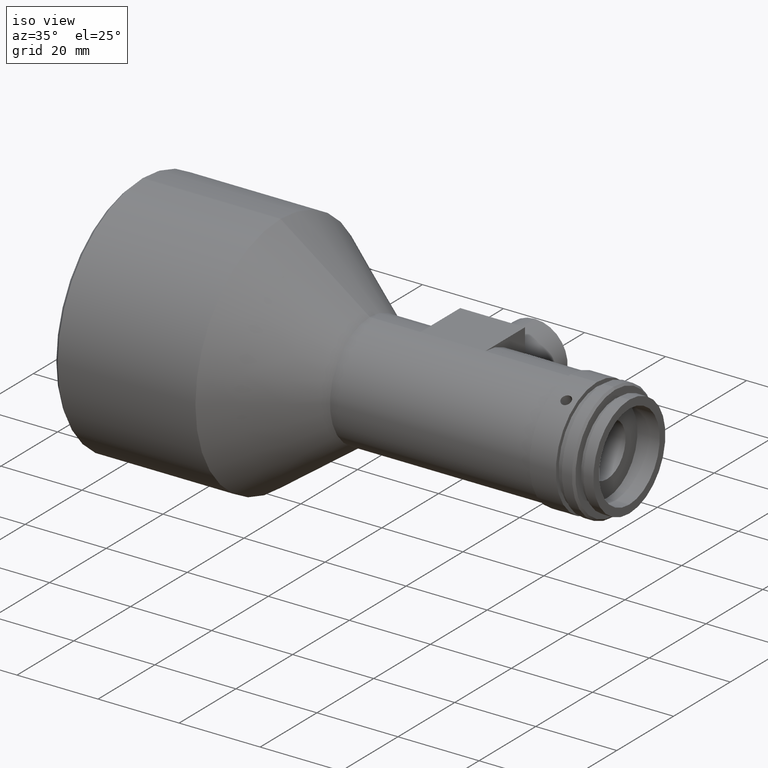
[diagram: clean part render]
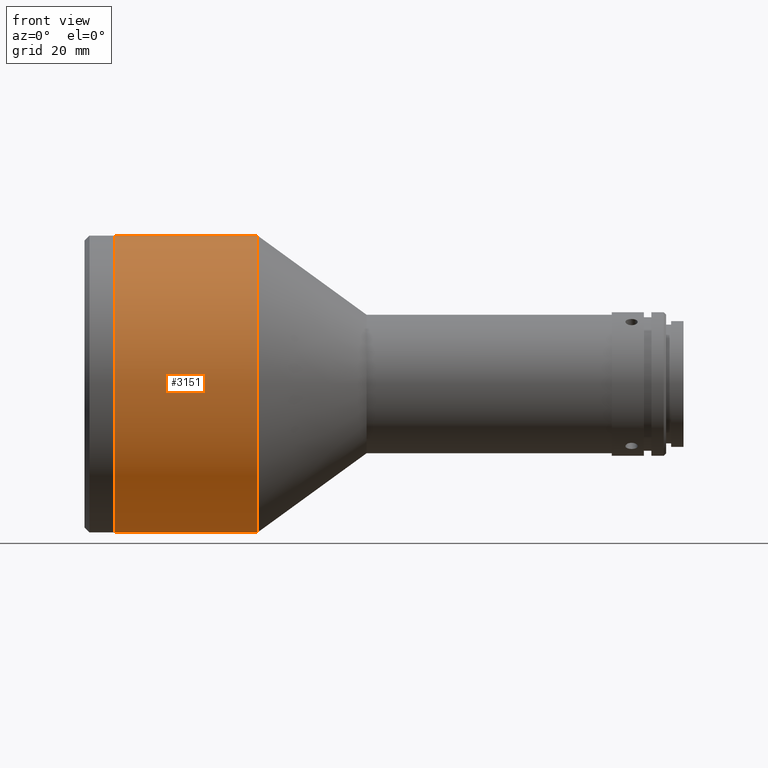
[diagram: tour spotlight — one face highlighted and labeled with its STEP entity id]
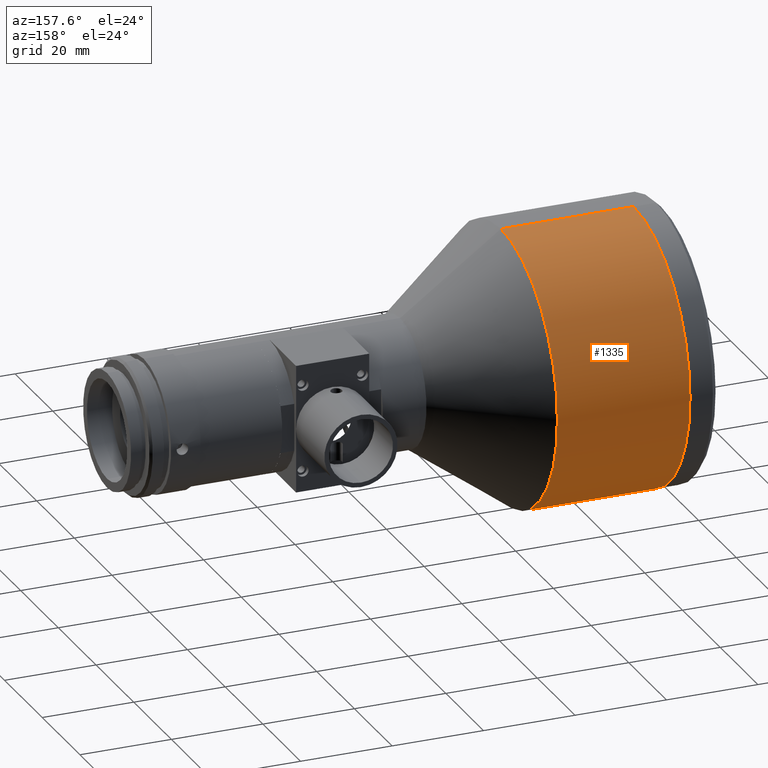
[diagram: tour spotlight — one face highlighted and labeled with its STEP entity id]
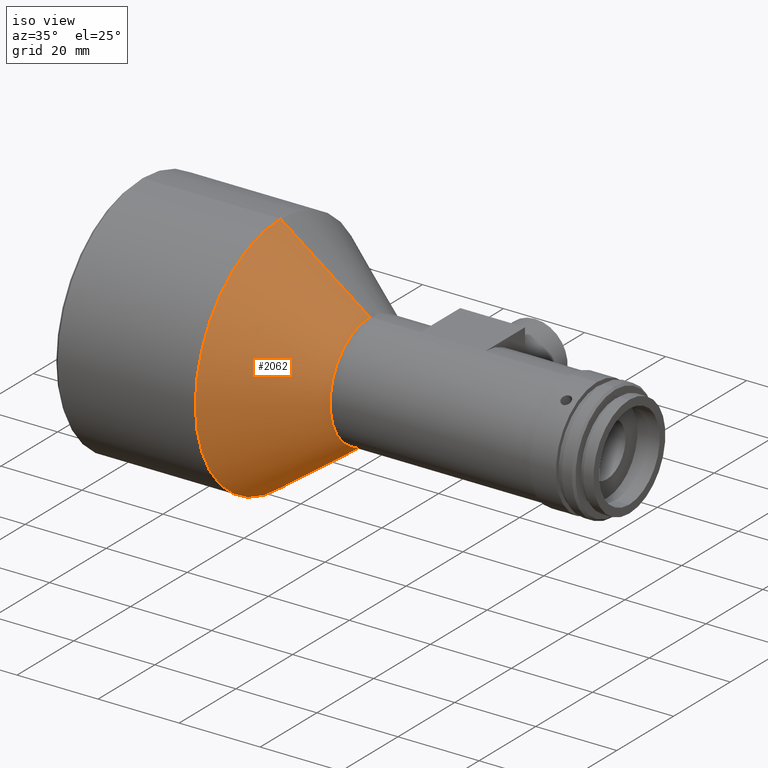
[diagram: tour spotlight — one face highlighted and labeled with its STEP entity id]
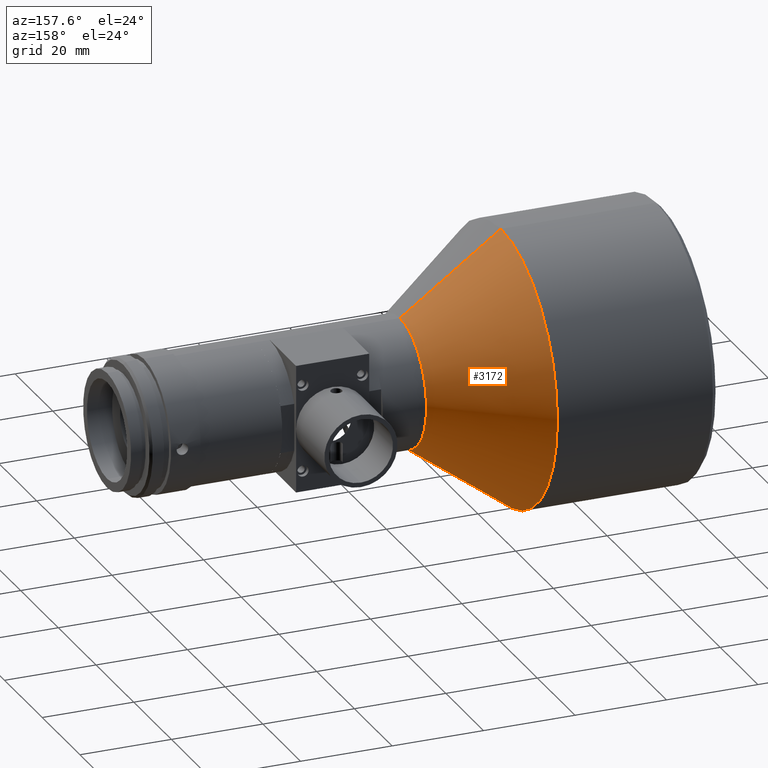
[diagram: tour spotlight — one face highlighted and labeled with its STEP entity id]
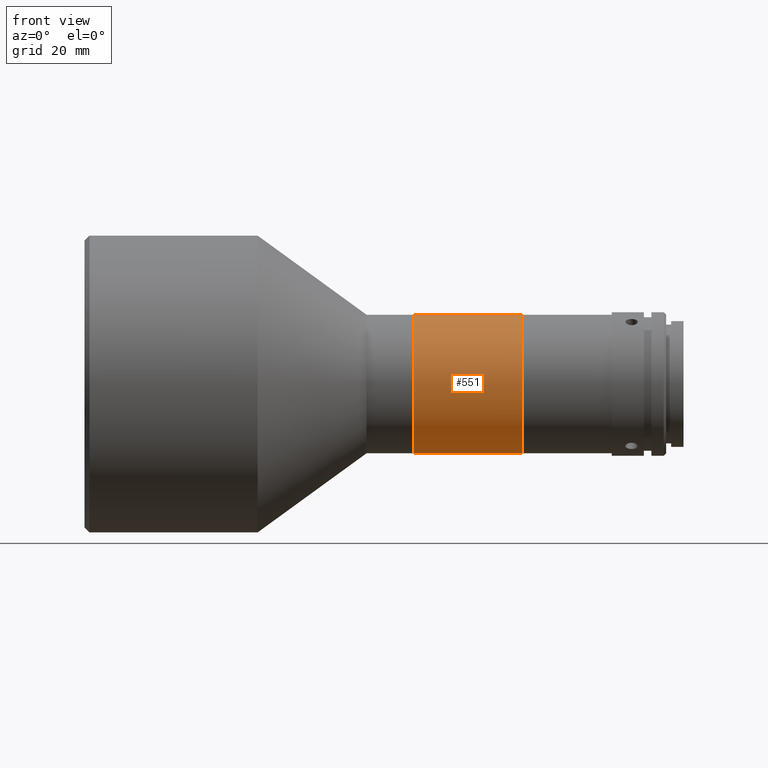
[diagram: tour spotlight — one face highlighted and labeled with its STEP entity id]
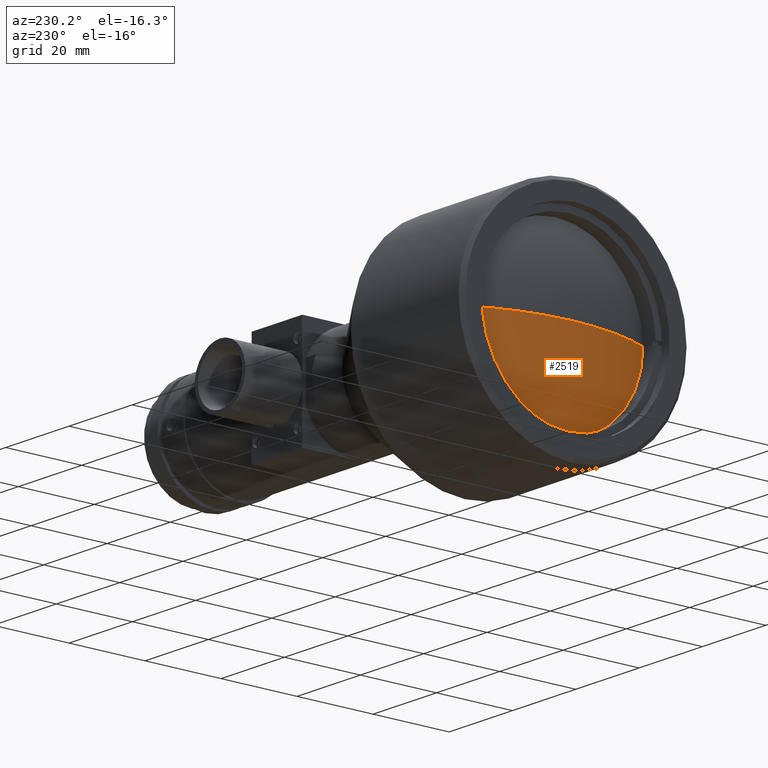
[diagram: tour spotlight — one face highlighted and labeled with its STEP entity id]
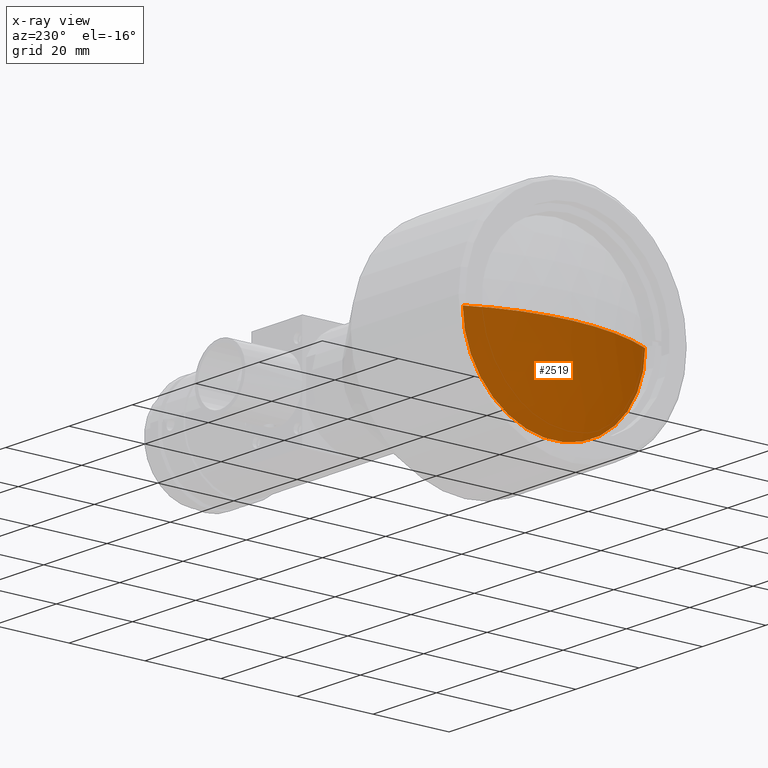
[diagram: x-ray of the same camera — body ghosted, this tour face saturated]
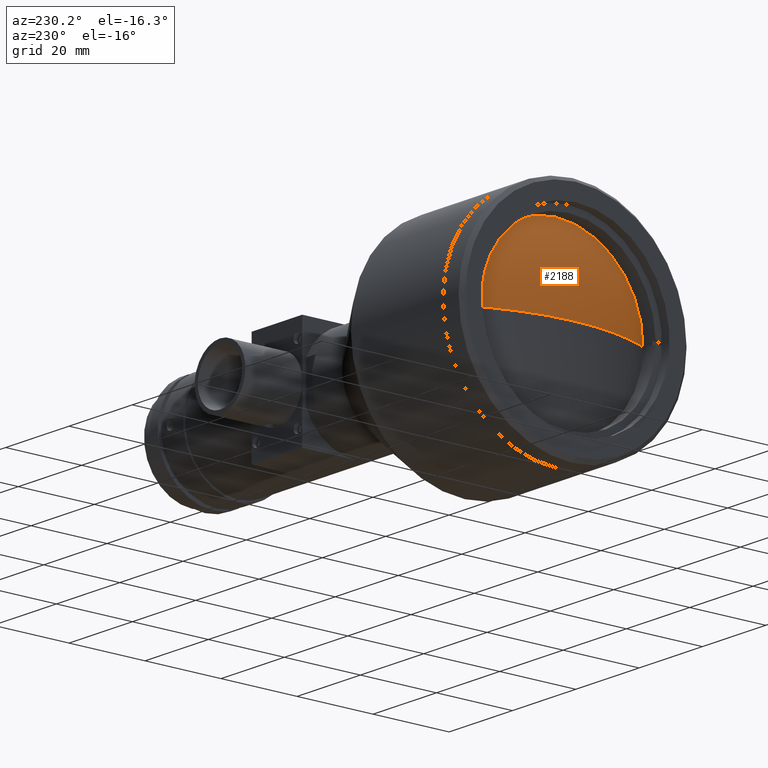
[diagram: tour spotlight — one face highlighted and labeled with its STEP entity id]
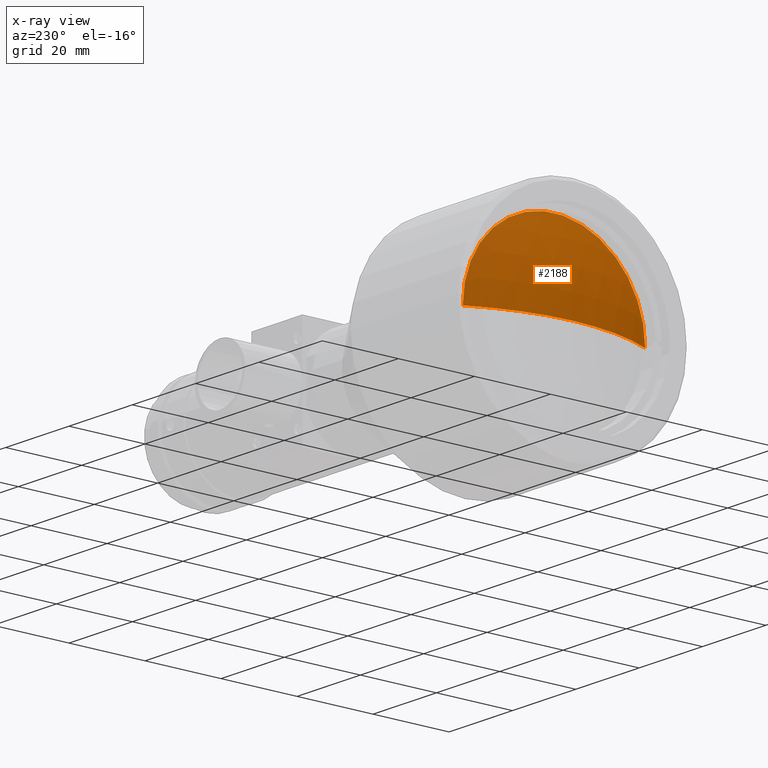
[diagram: x-ray of the same camera — body ghosted, this tour face saturated]
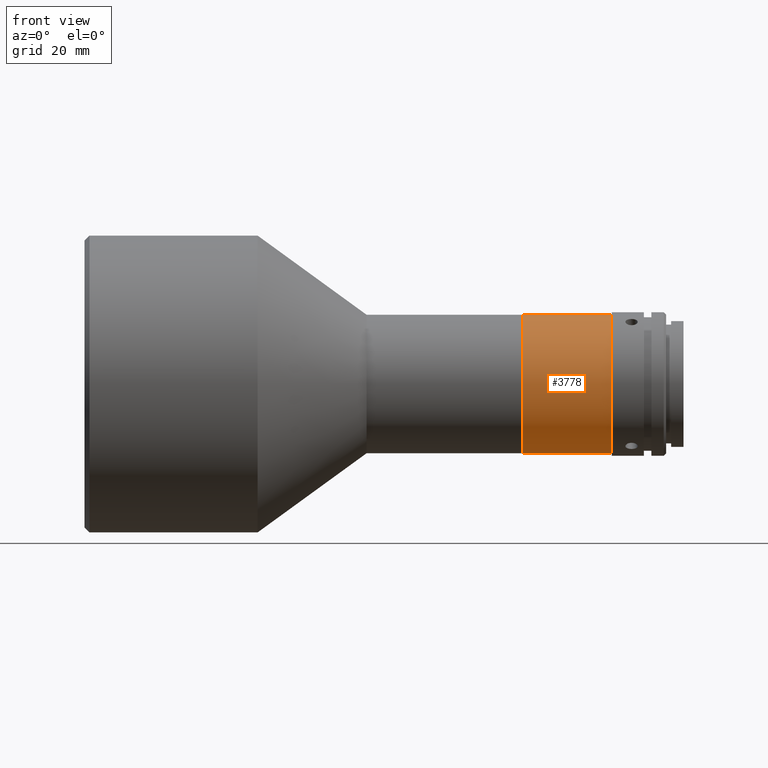
[diagram: tour spotlight — one face highlighted and labeled with its STEP entity id]
A machine part: a face-by-face anatomy tour. The part has 113 B-rep faces; the first image is the clean iso view, then the 8 largest visible faces are spotlighted one at a time (largest first), each with its STEP entity span.

Face 1 — front view, entity #3151. In plain terms, the highlighted cylindrical surface (partial cylindrical patch) has radius 30 mm, axis along (-1, -0, -0).
Definition (entity closure, byte-faithful):
#55 = LINE ( 'NONE', #1238, #846 ) ;
#68 = DIRECTION ( 'NONE',  ( -1.000000000000000000, -0.0000000000000000000, -0.0000000000000000000 ) ) ;
#344 = ORIENTED_EDGE ( 'NONE', *, *, #3383, .F. ) ;
#457 = VERTEX_POINT ( 'NONE', #1745 ) ;
#660 = CYLINDRICAL_SURFACE ( 'NONE', #906, 30.00000000000000000 ) ;
#837 = DIRECTION ( 'NONE',  ( 0.0000000000000000000, 0.0000000000000000000, 1.000000000000000000 ) ) ;
#846 = VECTOR ( 'NONE', #3369, 1000.000000000000000 ) ;
#906 = AXIS2_PLACEMENT_3D ( 'NONE', #3610, #3301, #837 ) ;
#933 = AXIS2_PLACEMENT_3D ( 'NONE', #1922, #68, #3124 ) ;
#944 = LINE ( 'NONE', #1747, #2588 ) ;
#960 = EDGE_CURVE ( 'NONE', #457, #2265, #944, .T. ) ;
#996 = CARTESIAN_POINT ( 'NONE',  ( 5.999999999999998200, 0.0000000000000000000, 0.0000000000000000000 ) ) ;
#1238 = CARTESIAN_POINT ( 'NONE',  ( -32.77816834106168600, 3.673940397442059200E-015, -30.00000000000000000 ) ) ;
#1296 = DIRECTION ( 'NONE',  ( 0.0000000000000000000, 0.0000000000000000000, 1.000000000000000000 ) ) ;
#1340 = VERTEX_POINT ( 'NONE', #3564 ) ;
#1496 = DIRECTION ( 'NONE',  ( -1.000000000000000000, -0.0000000000000000000, -0.0000000000000000000 ) ) ;
#1701 = CIRCLE ( 'NONE', #3168, 30.00000000000000000 ) ;
#1745 = CARTESIAN_POINT ( 'NONE',  ( 35.00000000000000000, 0.0000000000000000000, 29.99999999999999600 ) ) ;
#1747 = CARTESIAN_POINT ( 'NONE',  ( -32.77816834106168600, 0.0000000000000000000, 30.00000000000000000 ) ) ;
#1911 = CARTESIAN_POINT ( 'NONE',  ( 35.00000000000000000, 3.673940397442059200E-015, -29.99999999999999600 ) ) ;
#1922 = CARTESIAN_POINT ( 'NONE',  ( 35.00000000000000000, 0.0000000000000000000, 0.0000000000000000000 ) ) ;
#2265 = VERTEX_POINT ( 'NONE', #3732 ) ;
#2397 = EDGE_CURVE ( 'NONE', #3400, #457, #2406, .T. ) ;
#2406 = CIRCLE ( 'NONE', #933, 30.00000000000000000 ) ;
#2581 = ORIENTED_EDGE ( 'NONE', *, *, #2397, .T. ) ;
#2588 = VECTOR ( 'NONE', #1496, 1000.000000000000000 ) ;
#2738 = ORIENTED_EDGE ( 'NONE', *, *, #960, .T. ) ;
#3119 = ORIENTED_EDGE ( 'NONE', *, *, #3667, .F. ) ;
#3124 = DIRECTION ( 'NONE',  ( 0.0000000000000000000, 0.0000000000000000000, 1.000000000000000000 ) ) ;
#3134 = DIRECTION ( 'NONE',  ( -1.000000000000000000, -0.0000000000000000000, -0.0000000000000000000 ) ) ;
#3151 = ADVANCED_FACE ( 'NONE', ( #3194 ), #660, .T. ) ;
#3168 = AXIS2_PLACEMENT_3D ( 'NONE', #996, #3134, #1296 ) ;
#3194 = FACE_OUTER_BOUND ( 'NONE', #3448, .T. ) ;
#3301 = DIRECTION ( 'NONE',  ( -1.000000000000000000, -0.0000000000000000000, -0.0000000000000000000 ) ) ;
#3369 = DIRECTION ( 'NONE',  ( -1.000000000000000000, -0.0000000000000000000, -0.0000000000000000000 ) ) ;
#3383 = EDGE_CURVE ( 'NONE', #1340, #2265, #1701, .T. ) ;
#3400 = VERTEX_POINT ( 'NONE', #1911 ) ;
#3448 = EDGE_LOOP ( 'NONE', ( #3119, #2581, #2738, #344 ) ) ;
#3564 = CARTESIAN_POINT ( 'NONE',  ( 5.999999999999998200, 3.673940397442059200E-015, -30.00000000000000000 ) ) ;
#3610 = CARTESIAN_POINT ( 'NONE',  ( -32.77816834106168600, 0.0000000000000000000, 0.0000000000000000000 ) ) ;
#3667 = EDGE_CURVE ( 'NONE', #3400, #1340, #55, .T. ) ;
#3732 = CARTESIAN_POINT ( 'NONE',  ( 5.999999999999998200, 0.0000000000000000000, 30.00000000000000000 ) ) ;

Face 2 — auxiliary view, entity #1335. In plain terms, the highlighted cylindrical surface (partial cylindrical patch) has radius 30 mm, axis along (-1, -0, -0).
Definition (entity closure, byte-faithful):
#55 = LINE ( 'NONE', #1238, #846 ) ;
#427 = AXIS2_PLACEMENT_3D ( 'NONE', #3228, #1089, #1414 ) ;
#457 = VERTEX_POINT ( 'NONE', #1745 ) ;
#484 = DIRECTION ( 'NONE',  ( -1.000000000000000000, -0.0000000000000000000, -0.0000000000000000000 ) ) ;
#729 = EDGE_CURVE ( 'NONE', #457, #3400, #802, .T. ) ;
#802 = CIRCLE ( 'NONE', #3310, 30.00000000000000000 ) ;
#846 = VECTOR ( 'NONE', #3369, 1000.000000000000000 ) ;
#944 = LINE ( 'NONE', #1747, #2588 ) ;
#960 = EDGE_CURVE ( 'NONE', #457, #2265, #944, .T. ) ;
#1089 = DIRECTION ( 'NONE',  ( -1.000000000000000000, -0.0000000000000000000, -0.0000000000000000000 ) ) ;
#1238 = CARTESIAN_POINT ( 'NONE',  ( -32.77816834106168600, 3.673940397442059200E-015, -30.00000000000000000 ) ) ;
#1335 = ADVANCED_FACE ( 'NONE', ( #2209 ), #2547, .T. ) ;
#1340 = VERTEX_POINT ( 'NONE', #3564 ) ;
#1414 = DIRECTION ( 'NONE',  ( 0.0000000000000000000, 0.0000000000000000000, 1.000000000000000000 ) ) ;
#1447 = ORIENTED_EDGE ( 'NONE', *, *, #2470, .F. ) ;
#1496 = DIRECTION ( 'NONE',  ( -1.000000000000000000, -0.0000000000000000000, -0.0000000000000000000 ) ) ;
#1745 = CARTESIAN_POINT ( 'NONE',  ( 35.00000000000000000, 0.0000000000000000000, 29.99999999999999600 ) ) ;
#1747 = CARTESIAN_POINT ( 'NONE',  ( -32.77816834106168600, 0.0000000000000000000, 30.00000000000000000 ) ) ;
#1826 = DIRECTION ( 'NONE',  ( -1.000000000000000000, -0.0000000000000000000, -0.0000000000000000000 ) ) ;
#1911 = CARTESIAN_POINT ( 'NONE',  ( 35.00000000000000000, 3.673940397442059200E-015, -29.99999999999999600 ) ) ;
#1956 = AXIS2_PLACEMENT_3D ( 'NONE', #2319, #484, #2636 ) ;
#2019 = ORIENTED_EDGE ( 'NONE', *, *, #960, .F. ) ;
#2209 = FACE_OUTER_BOUND ( 'NONE', #3830, .T. ) ;
#2265 = VERTEX_POINT ( 'NONE', #3732 ) ;
#2319 = CARTESIAN_POINT ( 'NONE',  ( 5.999999999999998200, 0.0000000000000000000, 0.0000000000000000000 ) ) ;
#2470 = EDGE_CURVE ( 'NONE', #2265, #1340, #3820, .T. ) ;
#2547 = CYLINDRICAL_SURFACE ( 'NONE', #427, 30.00000000000000000 ) ;
#2588 = VECTOR ( 'NONE', #1496, 1000.000000000000000 ) ;
#2636 = DIRECTION ( 'NONE',  ( 0.0000000000000000000, 0.0000000000000000000, 1.000000000000000000 ) ) ;
#2897 = ORIENTED_EDGE ( 'NONE', *, *, #729, .T. ) ;
#3049 = CARTESIAN_POINT ( 'NONE',  ( 35.00000000000000000, 0.0000000000000000000, 0.0000000000000000000 ) ) ;
#3228 = CARTESIAN_POINT ( 'NONE',  ( -32.77816834106168600, 0.0000000000000000000, 0.0000000000000000000 ) ) ;
#3310 = AXIS2_PLACEMENT_3D ( 'NONE', #3049, #1826, #3498 ) ;
#3369 = DIRECTION ( 'NONE',  ( -1.000000000000000000, -0.0000000000000000000, -0.0000000000000000000 ) ) ;
#3400 = VERTEX_POINT ( 'NONE', #1911 ) ;
#3498 = DIRECTION ( 'NONE',  ( 0.0000000000000000000, 0.0000000000000000000, 1.000000000000000000 ) ) ;
#3564 = CARTESIAN_POINT ( 'NONE',  ( 5.999999999999998200, 3.673940397442059200E-015, -30.00000000000000000 ) ) ;
#3667 = EDGE_CURVE ( 'NONE', #3400, #1340, #55, .T. ) ;
#3732 = CARTESIAN_POINT ( 'NONE',  ( 5.999999999999998200, 0.0000000000000000000, 30.00000000000000000 ) ) ;
#3820 = CIRCLE ( 'NONE', #1956, 30.00000000000000000 ) ;
#3830 = EDGE_LOOP ( 'NONE', ( #2897, #3869, #1447, #2019 ) ) ;
#3869 = ORIENTED_EDGE ( 'NONE', *, *, #3667, .T. ) ;

Face 3 — iso view, entity #2062. In plain terms, the highlighted conical surface has half-angle 36 deg.
Definition (entity closure, byte-faithful):
#68 = DIRECTION ( 'NONE',  ( -1.000000000000000000, -0.0000000000000000000, -0.0000000000000000000 ) ) ;
#150 = CARTESIAN_POINT ( 'NONE',  ( 57.02211072753905800, 0.0000000000000000000, 0.0000000000000000000 ) ) ;
#186 = DIRECTION ( 'NONE',  ( 0.0000000000000000000, 0.0000000000000000000, 1.000000000000000000 ) ) ;
#279 = DIRECTION ( 'NONE',  ( 0.0000000000000000000, 0.0000000000000000000, 1.000000000000000000 ) ) ;
#457 = VERTEX_POINT ( 'NONE', #1745 ) ;
#656 = EDGE_CURVE ( 'NONE', #1263, #457, #1900, .T. ) ;
#779 = ORIENTED_EDGE ( 'NONE', *, *, #2397, .F. ) ;
#788 = CARTESIAN_POINT ( 'NONE',  ( 57.02211072753905800, 1.714505518806294400E-015, -13.99999999999999800 ) ) ;
#899 = EDGE_CURVE ( 'NONE', #2509, #1263, #2782, .T. ) ;
#933 = AXIS2_PLACEMENT_3D ( 'NONE', #1922, #68, #3124 ) ;
#977 = ORIENTED_EDGE ( 'NONE', *, *, #656, .T. ) ;
#1237 = DIRECTION ( 'NONE',  ( -1.000000000000000000, -0.0000000000000000000, -0.0000000000000000000 ) ) ;
#1263 = VERTEX_POINT ( 'NONE', #3612 ) ;
#1624 = EDGE_LOOP ( 'NONE', ( #3373, #1967, #977, #779 ) ) ;
#1723 = LINE ( 'NONE', #3018, #3251 ) ;
#1745 = CARTESIAN_POINT ( 'NONE',  ( 35.00000000000000000, 0.0000000000000000000, 29.99999999999999600 ) ) ;
#1900 = LINE ( 'NONE', #2431, #2729 ) ;
#1911 = CARTESIAN_POINT ( 'NONE',  ( 35.00000000000000000, 3.673940397442059200E-015, -29.99999999999999600 ) ) ;
#1922 = CARTESIAN_POINT ( 'NONE',  ( 35.00000000000000000, 0.0000000000000000000, 0.0000000000000000000 ) ) ;
#1967 = ORIENTED_EDGE ( 'NONE', *, *, #899, .T. ) ;
#2062 = ADVANCED_FACE ( 'NONE', ( #3441 ), #2457, .T. ) ;
#2397 = EDGE_CURVE ( 'NONE', #3400, #457, #2406, .T. ) ;
#2406 = CIRCLE ( 'NONE', #933, 30.00000000000000000 ) ;
#2430 = AXIS2_PLACEMENT_3D ( 'NONE', #3058, #1237, #186 ) ;
#2431 = CARTESIAN_POINT ( 'NONE',  ( 57.02211072753905800, 0.0000000000000000000, 13.99999999999999800 ) ) ;
#2457 = CONICAL_SURFACE ( 'NONE', #2744, 13.99999999999999800, 0.6283185307179526300 ) ;
#2509 = VERTEX_POINT ( 'NONE', #788 ) ;
#2647 = EDGE_CURVE ( 'NONE', #2509, #3400, #1723, .T. ) ;
#2729 = VECTOR ( 'NONE', #3468, 1000.000000000000000 ) ;
#2744 = AXIS2_PLACEMENT_3D ( 'NONE', #150, #3006, #279 ) ;
#2782 = CIRCLE ( 'NONE', #2430, 13.99999999999999800 ) ;
#3006 = DIRECTION ( 'NONE',  ( -1.000000000000000000, -0.0000000000000000000, -0.0000000000000000000 ) ) ;
#3018 = CARTESIAN_POINT ( 'NONE',  ( 57.02211072753905800, 1.714505518806294400E-015, -13.99999999999999800 ) ) ;
#3058 = CARTESIAN_POINT ( 'NONE',  ( 57.02211072753905800, 0.0000000000000000000, 0.0000000000000000000 ) ) ;
#3124 = DIRECTION ( 'NONE',  ( 0.0000000000000000000, 0.0000000000000000000, 1.000000000000000000 ) ) ;
#3251 = VECTOR ( 'NONE', #3907, 1000.000000000000000 ) ;
#3373 = ORIENTED_EDGE ( 'NONE', *, *, #2647, .F. ) ;
#3400 = VERTEX_POINT ( 'NONE', #1911 ) ;
#3441 = FACE_OUTER_BOUND ( 'NONE', #1624, .T. ) ;
#3468 = DIRECTION ( 'NONE',  ( -0.8090169943749510000, 0.0000000000000000000, 0.5877852522924682500 ) ) ;
#3612 = CARTESIAN_POINT ( 'NONE',  ( 57.02211072753905800, 0.0000000000000000000, 13.99999999999999800 ) ) ;
#3907 = DIRECTION ( 'NONE',  ( -0.8090169943749510000, 7.198293278059907200E-017, -0.5877852522924682500 ) ) ;

Face 4 — auxiliary view, entity #3172. In plain terms, the highlighted conical surface has half-angle 36 deg.
Definition (entity closure, byte-faithful):
#303 = AXIS2_PLACEMENT_3D ( 'NONE', #3023, #1178, #3317 ) ;
#383 = CIRCLE ( 'NONE', #1563, 13.99999999999999800 ) ;
#457 = VERTEX_POINT ( 'NONE', #1745 ) ;
#656 = EDGE_CURVE ( 'NONE', #1263, #457, #1900, .T. ) ;
#729 = EDGE_CURVE ( 'NONE', #457, #3400, #802, .T. ) ;
#788 = CARTESIAN_POINT ( 'NONE',  ( 57.02211072753905800, 1.714505518806294400E-015, -13.99999999999999800 ) ) ;
#802 = CIRCLE ( 'NONE', #3310, 30.00000000000000000 ) ;
#1178 = DIRECTION ( 'NONE',  ( -1.000000000000000000, -0.0000000000000000000, -0.0000000000000000000 ) ) ;
#1208 = DIRECTION ( 'NONE',  ( 0.0000000000000000000, 0.0000000000000000000, 1.000000000000000000 ) ) ;
#1218 = DIRECTION ( 'NONE',  ( -1.000000000000000000, -0.0000000000000000000, -0.0000000000000000000 ) ) ;
#1263 = VERTEX_POINT ( 'NONE', #3612 ) ;
#1458 = FACE_OUTER_BOUND ( 'NONE', #3533, .T. ) ;
#1563 = AXIS2_PLACEMENT_3D ( 'NONE', #3109, #1218, #1208 ) ;
#1574 = ORIENTED_EDGE ( 'NONE', *, *, #1779, .T. ) ;
#1723 = LINE ( 'NONE', #3018, #3251 ) ;
#1741 = ORIENTED_EDGE ( 'NONE', *, *, #729, .F. ) ;
#1745 = CARTESIAN_POINT ( 'NONE',  ( 35.00000000000000000, 0.0000000000000000000, 29.99999999999999600 ) ) ;
#1779 = EDGE_CURVE ( 'NONE', #1263, #2509, #383, .T. ) ;
#1826 = DIRECTION ( 'NONE',  ( -1.000000000000000000, -0.0000000000000000000, -0.0000000000000000000 ) ) ;
#1900 = LINE ( 'NONE', #2431, #2729 ) ;
#1911 = CARTESIAN_POINT ( 'NONE',  ( 35.00000000000000000, 3.673940397442059200E-015, -29.99999999999999600 ) ) ;
#2102 = CONICAL_SURFACE ( 'NONE', #303, 13.99999999999999800, 0.6283185307179526300 ) ;
#2431 = CARTESIAN_POINT ( 'NONE',  ( 57.02211072753905800, 0.0000000000000000000, 13.99999999999999800 ) ) ;
#2509 = VERTEX_POINT ( 'NONE', #788 ) ;
#2647 = EDGE_CURVE ( 'NONE', #2509, #3400, #1723, .T. ) ;
#2729 = VECTOR ( 'NONE', #3468, 1000.000000000000000 ) ;
#3018 = CARTESIAN_POINT ( 'NONE',  ( 57.02211072753905800, 1.714505518806294400E-015, -13.99999999999999800 ) ) ;
#3023 = CARTESIAN_POINT ( 'NONE',  ( 57.02211072753905800, 0.0000000000000000000, 0.0000000000000000000 ) ) ;
#3049 = CARTESIAN_POINT ( 'NONE',  ( 35.00000000000000000, 0.0000000000000000000, 0.0000000000000000000 ) ) ;
#3109 = CARTESIAN_POINT ( 'NONE',  ( 57.02211072753905800, 0.0000000000000000000, 0.0000000000000000000 ) ) ;
#3172 = ADVANCED_FACE ( 'NONE', ( #1458 ), #2102, .T. ) ;
#3251 = VECTOR ( 'NONE', #3907, 1000.000000000000000 ) ;
#3310 = AXIS2_PLACEMENT_3D ( 'NONE', #3049, #1826, #3498 ) ;
#3317 = DIRECTION ( 'NONE',  ( 0.0000000000000000000, 0.0000000000000000000, 1.000000000000000000 ) ) ;
#3400 = VERTEX_POINT ( 'NONE', #1911 ) ;
#3468 = DIRECTION ( 'NONE',  ( -0.8090169943749510000, 0.0000000000000000000, 0.5877852522924682500 ) ) ;
#3498 = DIRECTION ( 'NONE',  ( 0.0000000000000000000, 0.0000000000000000000, 1.000000000000000000 ) ) ;
#3533 = EDGE_LOOP ( 'NONE', ( #1574, #3735, #1741, #3733 ) ) ;
#3612 = CARTESIAN_POINT ( 'NONE',  ( 57.02211072753905800, 0.0000000000000000000, 13.99999999999999800 ) ) ;
#3733 = ORIENTED_EDGE ( 'NONE', *, *, #656, .F. ) ;
#3735 = ORIENTED_EDGE ( 'NONE', *, *, #2647, .T. ) ;
#3907 = DIRECTION ( 'NONE',  ( -0.8090169943749510000, 7.198293278059907200E-017, -0.5877852522924682500 ) ) ;

Face 5 — front view, entity #551. In plain terms, the highlighted cylindrical surface (partial cylindrical patch) has radius 14 mm, axis along (-1, -0, -0).
Definition (entity closure, byte-faithful):
#5 = DIRECTION ( 'NONE',  ( 0.0000000000000000000, 0.0000000000000000000, 1.000000000000000000 ) ) ;
#57 = ORIENTED_EDGE ( 'NONE', *, *, #691, .T. ) ;
#168 = CARTESIAN_POINT ( 'NONE',  ( 88.54000000000000600, 0.0000000000000000000, 0.0000000000000000000 ) ) ;
#203 = EDGE_CURVE ( 'NONE', #2184, #657, #3425, .T. ) ;
#211 = CARTESIAN_POINT ( 'NONE',  ( 69.54000000000000600, 0.0000000000000000000, -14.00000000000000000 ) ) ;
#286 = CARTESIAN_POINT ( 'NONE',  ( 88.54000000000000600, 0.0000000000000000000, 14.00000000000000000 ) ) ;
#302 = EDGE_CURVE ( 'NONE', #3919, #3101, #3856, .T. ) ;
#308 = CARTESIAN_POINT ( 'NONE',  ( 66.54000000000000600, 0.0000000000000000000, 14.00000000000000000 ) ) ;
#353 = AXIS2_PLACEMENT_3D ( 'NONE', #168, #522, #3565 ) ;
#377 = CIRCLE ( 'NONE', #2096, 14.00000000000000000 ) ;
#483 = AXIS2_PLACEMENT_3D ( 'NONE', #605, #584, #5 ) ;
#492 = DIRECTION ( 'NONE',  ( -1.000000000000000000, -0.0000000000000000000, -0.0000000000000000000 ) ) ;
#500 = VERTEX_POINT ( 'NONE', #2238 ) ;
#522 = DIRECTION ( 'NONE',  ( 1.000000000000000000, 0.0000000000000000000, 0.0000000000000000000 ) ) ;
#551 = ADVANCED_FACE ( 'NONE', ( #3196 ), #3713, .T. ) ;
#578 = LINE ( 'NONE', #1104, #3030 ) ;
#584 = DIRECTION ( 'NONE',  ( -1.000000000000000000, -0.0000000000000000000, -0.0000000000000000000 ) ) ;
#594 = CARTESIAN_POINT ( 'NONE',  ( 85.54000000000000600, 0.0000000000000000000, -14.00000000000000000 ) ) ;
#605 = CARTESIAN_POINT ( 'NONE',  ( 88.54000000000000600, 0.0000000000000000000, 0.0000000000000000000 ) ) ;
#657 = VERTEX_POINT ( 'NONE', #211 ) ;
#691 = EDGE_CURVE ( 'NONE', #2727, #1787, #377, .T. ) ;
#830 = ORIENTED_EDGE ( 'NONE', *, *, #203, .F. ) ;
#840 = DIRECTION ( 'NONE',  ( 1.000000000000000000, 0.0000000000000000000, -1.084202172485504400E-016 ) ) ;
#974 = DIRECTION ( 'NONE',  ( -1.000000000000000000, -0.0000000000000000000, -0.0000000000000000000 ) ) ;
#1104 = CARTESIAN_POINT ( 'NONE',  ( 88.54000000000000600, 1.714505518806294600E-015, -14.00000000000000000 ) ) ;
#1158 = ORIENTED_EDGE ( 'NONE', *, *, #1240, .F. ) ;
#1173 = VECTOR ( 'NONE', #974, 1000.000000000000000 ) ;
#1240 = EDGE_CURVE ( 'NONE', #1838, #500, #1374, .T. ) ;
#1256 = DIRECTION ( 'NONE',  ( 0.0000000000000000000, 0.0000000000000000000, -1.000000000000000000 ) ) ;
#1374 = LINE ( 'NONE', #2293, #2931 ) ;
#1693 = ORIENTED_EDGE ( 'NONE', *, *, #2681, .T. ) ;
#1757 = VECTOR ( 'NONE', #3104, 1000.000000000000000 ) ;
#1787 = VERTEX_POINT ( 'NONE', #2433 ) ;
#1838 = VERTEX_POINT ( 'NONE', #1949 ) ;
#1845 = ORIENTED_EDGE ( 'NONE', *, *, #3748, .T. ) ;
#1908 = ORIENTED_EDGE ( 'NONE', *, *, #302, .F. ) ;
#1949 = CARTESIAN_POINT ( 'NONE',  ( 69.54000000000000600, 0.0000000000000000000, 14.00000000000000000 ) ) ;
#1990 = LINE ( 'NONE', #2821, #1173 ) ;
#2028 = CARTESIAN_POINT ( 'NONE',  ( 88.54000000000000600, 1.714505518806294600E-015, -14.00000000000000000 ) ) ;
#2096 = AXIS2_PLACEMENT_3D ( 'NONE', #3254, #3293, #1256 ) ;
#2184 = VERTEX_POINT ( 'NONE', #594 ) ;
#2238 = CARTESIAN_POINT ( 'NONE',  ( 85.54000000000000600, 0.0000000000000000000, 13.99999999999999800 ) ) ;
#2293 = CARTESIAN_POINT ( 'NONE',  ( 69.54000000000000600, 0.0000000000000000000, 14.00000000000000000 ) ) ;
#2428 = DIRECTION ( 'NONE',  ( -1.000000000000000000, -0.0000000000000000000, -0.0000000000000000000 ) ) ;
#2433 = CARTESIAN_POINT ( 'NONE',  ( 66.54000000000000600, 1.714505518806294600E-015, -14.00000000000000000 ) ) ;
#2443 = VECTOR ( 'NONE', #3365, 1000.000000000000000 ) ;
#2453 = VECTOR ( 'NONE', #2428, 1000.000000000000000 ) ;
#2517 = EDGE_CURVE ( 'NONE', #657, #1787, #578, .T. ) ;
#2681 = EDGE_CURVE ( 'NONE', #3919, #500, #3340, .T. ) ;
#2727 = VERTEX_POINT ( 'NONE', #308 ) ;
#2821 = CARTESIAN_POINT ( 'NONE',  ( 88.54000000000000600, 0.0000000000000000000, 14.00000000000000000 ) ) ;
#2931 = VECTOR ( 'NONE', #840, 1000.000000000000000 ) ;
#3030 = VECTOR ( 'NONE', #492, 1000.000000000000000 ) ;
#3101 = VERTEX_POINT ( 'NONE', #2028 ) ;
#3104 = DIRECTION ( 'NONE',  ( -1.000000000000000000, -0.0000000000000000000, -0.0000000000000000000 ) ) ;
#3155 = CARTESIAN_POINT ( 'NONE',  ( 69.54000000000000600, 0.0000000000000000000, -14.00000000000000000 ) ) ;
#3182 = ORIENTED_EDGE ( 'NONE', *, *, #3727, .F. ) ;
#3188 = LINE ( 'NONE', #3704, #1757 ) ;
#3196 = FACE_OUTER_BOUND ( 'NONE', #3334, .T. ) ;
#3222 = ORIENTED_EDGE ( 'NONE', *, *, #2517, .F. ) ;
#3254 = CARTESIAN_POINT ( 'NONE',  ( 66.54000000000000600, 0.0000000000000000000, 0.0000000000000000000 ) ) ;
#3293 = DIRECTION ( 'NONE',  ( 1.000000000000000000, 0.0000000000000000000, 0.0000000000000000000 ) ) ;
#3334 = EDGE_LOOP ( 'NONE', ( #3182, #1908, #1693, #1158, #1845, #57, #3222, #830 ) ) ;
#3340 = LINE ( 'NONE', #286, #2453 ) ;
#3365 = DIRECTION ( 'NONE',  ( -1.000000000000000000, -0.0000000000000000000, -1.084202172485504400E-016 ) ) ;
#3425 = LINE ( 'NONE', #3155, #2443 ) ;
#3532 = CARTESIAN_POINT ( 'NONE',  ( 88.54000000000000600, 0.0000000000000000000, 14.00000000000000000 ) ) ;
#3565 = DIRECTION ( 'NONE',  ( 0.0000000000000000000, 0.0000000000000000000, -1.000000000000000000 ) ) ;
#3704 = CARTESIAN_POINT ( 'NONE',  ( 88.54000000000000600, 1.714505518806294600E-015, -14.00000000000000000 ) ) ;
#3713 = CYLINDRICAL_SURFACE ( 'NONE', #483, 14.00000000000000000 ) ;
#3727 = EDGE_CURVE ( 'NONE', #3101, #2184, #3188, .T. ) ;
#3748 = EDGE_CURVE ( 'NONE', #1838, #2727, #1990, .T. ) ;
#3856 = CIRCLE ( 'NONE', #353, 14.00000000000000000 ) ;
#3919 = VERTEX_POINT ( 'NONE', #3532 ) ;

Face 6 — auxiliary view, entity #2519. An x-ray twin of the same camera follows (body ghosted, this face saturated) — the face is partly hidden behind the body. In plain terms, the highlighted spherical surface has radius 52.8 mm.
Definition (entity closure, byte-faithful):
#170 = ORIENTED_EDGE ( 'NONE', *, *, #3516, .T. ) ;
#172 = DIRECTION ( 'NONE',  ( 0.0000000000000000000, 1.224646799147353200E-016, -1.000000000000000000 ) ) ;
#207 = DIRECTION ( 'NONE',  ( 0.0000000000000000000, 1.000000000000000000, 0.0000000000000000000 ) ) ;
#491 = CARTESIAN_POINT ( 'NONE',  ( 1.108133933174597400, 3.233067549749012400E-015, 0.0000000000000000000 ) ) ;
#698 = EDGE_CURVE ( 'NONE', #2510, #3059, #2539, .T. ) ;
#966 = VERTEX_POINT ( 'NONE', #2598 ) ;
#1091 = CARTESIAN_POINT ( 'NONE',  ( 6.877930871737575600, 0.0000000000000000000, 0.0000000000000000000 ) ) ;
#1378 = CIRCLE ( 'NONE', #2176, 23.99999999999999300 ) ;
#1389 = DIRECTION ( 'NONE',  ( 0.0000000000000000000, 0.0000000000000000000, 1.000000000000000000 ) ) ;
#1443 = AXIS2_PLACEMENT_3D ( 'NONE', #1996, #172, #2312 ) ;
#1996 = CARTESIAN_POINT ( 'NONE',  ( 53.90813393317459700, 0.0000000000000000000, 0.0000000000000000000 ) ) ;
#2007 = CARTESIAN_POINT ( 'NONE',  ( 53.90813393317459700, 0.0000000000000000000, 0.0000000000000000000 ) ) ;
#2036 = DIRECTION ( 'NONE',  ( -0.0000000000000000000, 0.0000000000000000000, -1.000000000000000000 ) ) ;
#2121 = DIRECTION ( 'NONE',  ( -0.0000000000000000000, 0.0000000000000000000, 1.000000000000000000 ) ) ;
#2176 = AXIS2_PLACEMENT_3D ( 'NONE', #1091, #3229, #1389 ) ;
#2177 = CARTESIAN_POINT ( 'NONE',  ( 53.90813393317459700, 0.0000000000000000000, 0.0000000000000000000 ) ) ;
#2301 = AXIS2_PLACEMENT_3D ( 'NONE', #2177, #2121, #2715 ) ;
#2312 = DIRECTION ( 'NONE',  ( 0.0000000000000000000, 1.000000000000000000, 1.224646799147353200E-016 ) ) ;
#2335 = CARTESIAN_POINT ( 'NONE',  ( 6.877930871737575600, 23.99999999999999300, 0.0000000000000000000 ) ) ;
#2340 = CIRCLE ( 'NONE', #1443, 52.79999999999999700 ) ;
#2390 = ORIENTED_EDGE ( 'NONE', *, *, #698, .F. ) ;
#2484 = EDGE_CURVE ( 'NONE', #2510, #966, #1378, .T. ) ;
#2510 = VERTEX_POINT ( 'NONE', #2335 ) ;
#2519 = ADVANCED_FACE ( 'NONE', ( #3629 ), #3725, .T. ) ;
#2539 = CIRCLE ( 'NONE', #2301, 52.80000000000000400 ) ;
#2598 = CARTESIAN_POINT ( 'NONE',  ( 6.877930871737575600, -23.99999999999999300, -2.939152317953647100E-015 ) ) ;
#2704 = ORIENTED_EDGE ( 'NONE', *, *, #2484, .T. ) ;
#2715 = DIRECTION ( 'NONE',  ( 1.000000000000000000, 0.0000000000000000000, 0.0000000000000000000 ) ) ;
#3059 = VERTEX_POINT ( 'NONE', #491 ) ;
#3193 = AXIS2_PLACEMENT_3D ( 'NONE', #2007, #2036, #207 ) ;
#3229 = DIRECTION ( 'NONE',  ( -1.000000000000000000, -0.0000000000000000000, -0.0000000000000000000 ) ) ;
#3260 = EDGE_LOOP ( 'NONE', ( #2704, #170, #2390 ) ) ;
#3516 = EDGE_CURVE ( 'NONE', #966, #3059, #2340, .T. ) ;
#3629 = FACE_OUTER_BOUND ( 'NONE', #3260, .T. ) ;
#3725 = SPHERICAL_SURFACE ( 'NONE', #3193, 52.79999999999999700 ) ;

Face 7 — auxiliary view, entity #2188. An x-ray twin of the same camera follows (body ghosted, this face saturated) — the face is partly hidden behind the body. In plain terms, the highlighted spherical surface has radius 52.8 mm.
Definition (entity closure, byte-faithful):
#172 = DIRECTION ( 'NONE',  ( 0.0000000000000000000, 1.224646799147353200E-016, -1.000000000000000000 ) ) ;
#491 = CARTESIAN_POINT ( 'NONE',  ( 1.108133933174597400, 3.233067549749012400E-015, 0.0000000000000000000 ) ) ;
#501 = ORIENTED_EDGE ( 'NONE', *, *, #3516, .F. ) ;
#698 = EDGE_CURVE ( 'NONE', #2510, #3059, #2539, .T. ) ;
#820 = DIRECTION ( 'NONE',  ( 0.0000000000000000000, 1.000000000000000000, 0.0000000000000000000 ) ) ;
#966 = VERTEX_POINT ( 'NONE', #2598 ) ;
#1339 = SPHERICAL_SURFACE ( 'NONE', #1409, 52.79999999999999700 ) ;
#1409 = AXIS2_PLACEMENT_3D ( 'NONE', #3045, #1517, #820 ) ;
#1429 = FACE_OUTER_BOUND ( 'NONE', #1828, .T. ) ;
#1443 = AXIS2_PLACEMENT_3D ( 'NONE', #1996, #172, #2312 ) ;
#1517 = DIRECTION ( 'NONE',  ( -0.0000000000000000000, 0.0000000000000000000, -1.000000000000000000 ) ) ;
#1799 = EDGE_CURVE ( 'NONE', #966, #2510, #1906, .T. ) ;
#1828 = EDGE_LOOP ( 'NONE', ( #501, #2667, #2422 ) ) ;
#1906 = CIRCLE ( 'NONE', #3022, 23.99999999999999300 ) ;
#1996 = CARTESIAN_POINT ( 'NONE',  ( 53.90813393317459700, 0.0000000000000000000, 0.0000000000000000000 ) ) ;
#2121 = DIRECTION ( 'NONE',  ( -0.0000000000000000000, 0.0000000000000000000, 1.000000000000000000 ) ) ;
#2177 = CARTESIAN_POINT ( 'NONE',  ( 53.90813393317459700, 0.0000000000000000000, 0.0000000000000000000 ) ) ;
#2188 = ADVANCED_FACE ( 'NONE', ( #1429 ), #1339, .T. ) ;
#2301 = AXIS2_PLACEMENT_3D ( 'NONE', #2177, #2121, #2715 ) ;
#2312 = DIRECTION ( 'NONE',  ( 0.0000000000000000000, 1.000000000000000000, 1.224646799147353200E-016 ) ) ;
#2335 = CARTESIAN_POINT ( 'NONE',  ( 6.877930871737575600, 23.99999999999999300, 0.0000000000000000000 ) ) ;
#2340 = CIRCLE ( 'NONE', #1443, 52.79999999999999700 ) ;
#2422 = ORIENTED_EDGE ( 'NONE', *, *, #698, .T. ) ;
#2510 = VERTEX_POINT ( 'NONE', #2335 ) ;
#2539 = CIRCLE ( 'NONE', #2301, 52.80000000000000400 ) ;
#2598 = CARTESIAN_POINT ( 'NONE',  ( 6.877930871737575600, -23.99999999999999300, -2.939152317953647100E-015 ) ) ;
#2601 = DIRECTION ( 'NONE',  ( 0.0000000000000000000, 0.0000000000000000000, 1.000000000000000000 ) ) ;
#2667 = ORIENTED_EDGE ( 'NONE', *, *, #1799, .T. ) ;
#2715 = DIRECTION ( 'NONE',  ( 1.000000000000000000, 0.0000000000000000000, 0.0000000000000000000 ) ) ;
#2717 = DIRECTION ( 'NONE',  ( -1.000000000000000000, -0.0000000000000000000, -0.0000000000000000000 ) ) ;
#3022 = AXIS2_PLACEMENT_3D ( 'NONE', #3141, #2717, #2601 ) ;
#3045 = CARTESIAN_POINT ( 'NONE',  ( 53.90813393317459700, 0.0000000000000000000, 0.0000000000000000000 ) ) ;
#3059 = VERTEX_POINT ( 'NONE', #491 ) ;
#3141 = CARTESIAN_POINT ( 'NONE',  ( 6.877930871737575600, 0.0000000000000000000, 0.0000000000000000000 ) ) ;
#3516 = EDGE_CURVE ( 'NONE', #966, #3059, #2340, .T. ) ;

Face 8 — front view, entity #3778. In plain terms, the highlighted cylindrical surface (partial cylindrical patch) has radius 14 mm, axis along (-1, -0, -0).
Definition (entity closure, byte-faithful):
#265 = EDGE_CURVE ( 'NONE', #2747, #3276, #1510, .T. ) ;
#271 = CYLINDRICAL_SURFACE ( 'NONE', #2413, 14.00000000000000000 ) ;
#300 = CIRCLE ( 'NONE', #2124, 14.00000000000000000 ) ;
#329 = CARTESIAN_POINT ( 'NONE',  ( 88.54000000000000600, 0.0000000000000000000, 14.00000000000000000 ) ) ;
#375 = CARTESIAN_POINT ( 'NONE',  ( 66.73674763457358900, 0.0000000000000000000, 0.0000000000000000000 ) ) ;
#473 = CARTESIAN_POINT ( 'NONE',  ( 66.73674763457358900, 0.0000000000000000000, 14.00000000000000000 ) ) ;
#585 = ORIENTED_EDGE ( 'NONE', *, *, #2013, .T. ) ;
#712 = VECTOR ( 'NONE', #2646, 1000.000000000000000 ) ;
#909 = CARTESIAN_POINT ( 'NONE',  ( 88.54000000000000600, 1.714505518806294600E-015, -14.00000000000000000 ) ) ;
#992 = DIRECTION ( 'NONE',  ( -1.000000000000000000, -0.0000000000000000000, -0.0000000000000000000 ) ) ;
#1025 = VERTEX_POINT ( 'NONE', #3065 ) ;
#1283 = CARTESIAN_POINT ( 'NONE',  ( 66.73674763457358900, 1.714505518806294600E-015, -14.00000000000000000 ) ) ;
#1294 = CIRCLE ( 'NONE', #2596, 14.00000000000000000 ) ;
#1402 = DIRECTION ( 'NONE',  ( -1.000000000000000000, -0.0000000000000000000, -0.0000000000000000000 ) ) ;
#1510 = LINE ( 'NONE', #473, #712 ) ;
#1581 = DIRECTION ( 'NONE',  ( -1.000000000000000000, -0.0000000000000000000, -0.0000000000000000000 ) ) ;
#1600 = VERTEX_POINT ( 'NONE', #909 ) ;
#1669 = DIRECTION ( 'NONE',  ( -1.000000000000000000, -0.0000000000000000000, -0.0000000000000000000 ) ) ;
#2013 = EDGE_CURVE ( 'NONE', #1025, #2747, #300, .T. ) ;
#2124 = AXIS2_PLACEMENT_3D ( 'NONE', #3799, #1669, #3500 ) ;
#2327 = ORIENTED_EDGE ( 'NONE', *, *, #2512, .F. ) ;
#2413 = AXIS2_PLACEMENT_3D ( 'NONE', #375, #992, #2837 ) ;
#2465 = CARTESIAN_POINT ( 'NONE',  ( 106.5899999999999900, 0.0000000000000000000, 14.00000000000000000 ) ) ;
#2512 = EDGE_CURVE ( 'NONE', #1600, #3276, #1294, .T. ) ;
#2534 = VECTOR ( 'NONE', #1581, 1000.000000000000000 ) ;
#2568 = EDGE_LOOP ( 'NONE', ( #2903, #585, #3066, #2327 ) ) ;
#2596 = AXIS2_PLACEMENT_3D ( 'NONE', #3244, #1402, #3546 ) ;
#2635 = LINE ( 'NONE', #1283, #2534 ) ;
#2646 = DIRECTION ( 'NONE',  ( -1.000000000000000000, -0.0000000000000000000, -0.0000000000000000000 ) ) ;
#2747 = VERTEX_POINT ( 'NONE', #2465 ) ;
#2837 = DIRECTION ( 'NONE',  ( 0.0000000000000000000, 0.0000000000000000000, 1.000000000000000000 ) ) ;
#2903 = ORIENTED_EDGE ( 'NONE', *, *, #3342, .F. ) ;
#3065 = CARTESIAN_POINT ( 'NONE',  ( 106.5899999999999900, 1.714505518806294600E-015, -14.00000000000000000 ) ) ;
#3066 = ORIENTED_EDGE ( 'NONE', *, *, #265, .T. ) ;
#3244 = CARTESIAN_POINT ( 'NONE',  ( 88.54000000000000600, 0.0000000000000000000, 0.0000000000000000000 ) ) ;
#3276 = VERTEX_POINT ( 'NONE', #329 ) ;
#3342 = EDGE_CURVE ( 'NONE', #1025, #1600, #2635, .T. ) ;
#3500 = DIRECTION ( 'NONE',  ( 0.0000000000000000000, 0.0000000000000000000, 1.000000000000000000 ) ) ;
#3546 = DIRECTION ( 'NONE',  ( 0.0000000000000000000, 0.0000000000000000000, 1.000000000000000000 ) ) ;
#3609 = FACE_OUTER_BOUND ( 'NONE', #2568, .T. ) ;
#3778 = ADVANCED_FACE ( 'NONE', ( #3609 ), #271, .T. ) ;
#3799 = CARTESIAN_POINT ( 'NONE',  ( 106.5899999999999900, 0.0000000000000000000, 0.0000000000000000000 ) ) ;